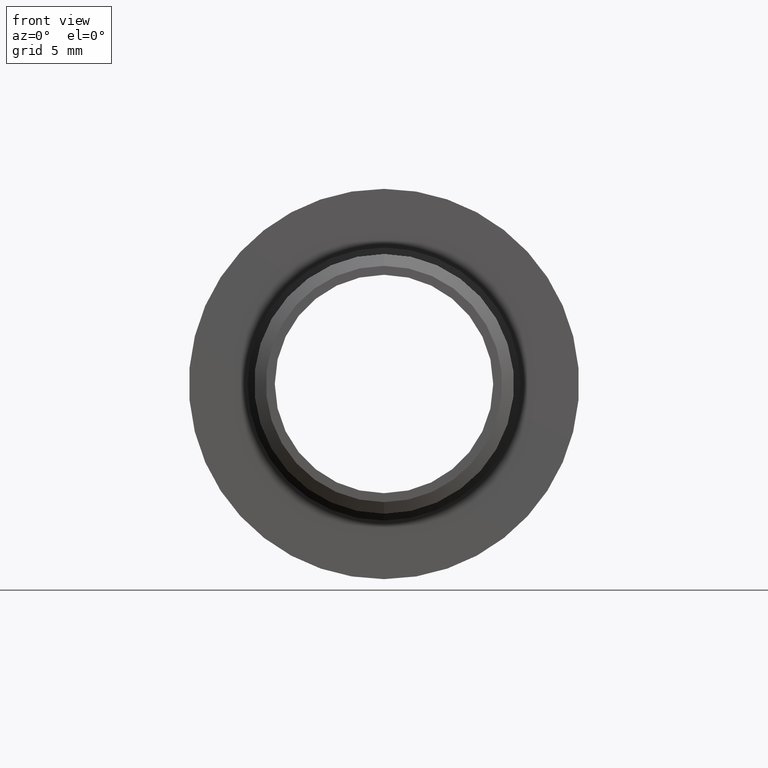
[diagram: clean part render]
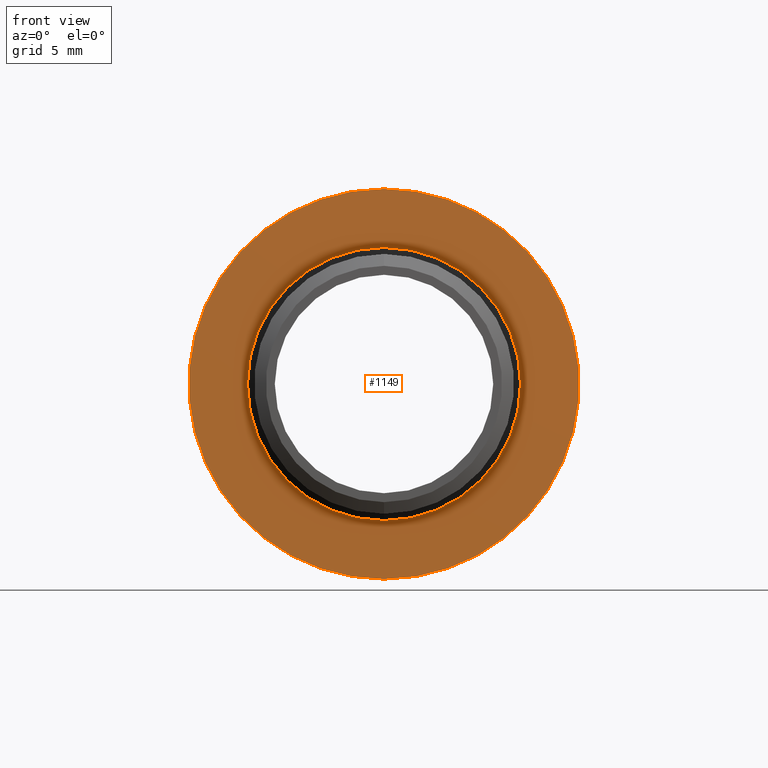
[diagram: same view with one face highlighted and labeled with its STEP entity id]
A machine part, front view. The second image highlights one B-rep face of the part: STEP entity #1149.
In plain terms, the highlighted planar face has unit normal (0, -1, -0).
Its self-contained STEP definition (entity closure, byte-faithful):
#3 = VERTEX_POINT ( 'NONE', #480 ) ;
#5 = VERTEX_POINT ( 'NONE', #475 ) ;
#7 = EDGE_CURVE ( 'NONE', #3, #5, #539, .T. ) ;
#475 = CARTESIAN_POINT ( 'NONE',  ( 0.0000000000000000000, 0.3399999999999998000, 0.3150000000000000000 ) ) ;
#480 = CARTESIAN_POINT ( 'NONE',  ( 3.857637417314162700E-017, 0.3399999999999998000, -0.3150000000000000000 ) ) ;
#535 = DIRECTION ( 'NONE',  ( 0.0000000000000000000, 0.0000000000000000000, -1.000000000000000000 ) ) ;
#536 = DIRECTION ( 'NONE',  ( -0.0000000000000000000, -1.000000000000000000, -0.0000000000000000000 ) ) ;
#537 = CARTESIAN_POINT ( 'NONE',  ( 0.0000000000000000000, 0.3399999999999998000, 0.0000000000000000000 ) ) ;
#538 = AXIS2_PLACEMENT_3D ( 'NONE', #537, #536, #535 ) ;
#539 = CIRCLE ( 'NONE', #538, 0.3150000000000000000 ) ;
#1088 = VERTEX_POINT ( 'NONE', #1604 ) ;
#1092 = EDGE_CURVE ( 'NONE', #1088, #1093, #1599, .T. ) ;
#1093 = VERTEX_POINT ( 'NONE', #1594 ) ;
#1108 = ORIENTED_EDGE ( 'NONE', *, *, #1233, .T. ) ;
#1136 = ORIENTED_EDGE ( 'NONE', *, *, #1092, .T. ) ;
#1143 = EDGE_LOOP ( 'NONE', ( #1136, #1108 ) ) ;
#1149 = ADVANCED_FACE ( 'NONE', ( #1687, #1686 ), #1685, .T. ) ;
#1216 = ORIENTED_EDGE ( 'NONE', *, *, #1229, .F. ) ;
#1217 = EDGE_LOOP ( 'NONE', ( #1216, #1224 ) ) ;
#1224 = ORIENTED_EDGE ( 'NONE', *, *, #7, .F. ) ;
#1229 = EDGE_CURVE ( 'NONE', #5, #3, #1843, .T. ) ;
#1233 = EDGE_CURVE ( 'NONE', #1093, #1088, #1838, .T. ) ;
#1594 = CARTESIAN_POINT ( 'NONE',  ( 5.514584536560531100E-017, 0.3399999999999999700, 0.4502999999999999800 ) ) ;
#1595 = DIRECTION ( 'NONE',  ( 0.0000000000000000000, 0.0000000000000000000, -1.000000000000000000 ) ) ;
#1596 = DIRECTION ( 'NONE',  ( -0.0000000000000000000, -1.000000000000000000, -0.0000000000000000000 ) ) ;
#1597 = CARTESIAN_POINT ( 'NONE',  ( 0.0000000000000000000, 0.3399999999999999700, 0.0000000000000000000 ) ) ;
#1598 = AXIS2_PLACEMENT_3D ( 'NONE', #1597, #1596, #1595 ) ;
#1599 = CIRCLE ( 'NONE', #1598, 0.4502999999999999800 ) ;
#1604 = CARTESIAN_POINT ( 'NONE',  ( 0.0000000000000000000, 0.3399999999999999700, -0.4502999999999999800 ) ) ;
#1680 = DIRECTION ( 'NONE',  ( 0.0000000000000000000, 0.0000000000000000000, -1.000000000000000000 ) ) ;
#1681 = DIRECTION ( 'NONE',  ( 0.0000000000000000000, -1.000000000000000000, -0.0000000000000000000 ) ) ;
#1682 = AXIS2_PLACEMENT_3D ( 'NONE', #1684, #1681, #1680 ) ;
#1684 = CARTESIAN_POINT ( 'NONE',  ( 0.3150000000000000000, 0.3399999999999999700, 0.0000000000000000000 ) ) ;
#1685 = PLANE ( 'NONE',  #1682 ) ;
#1686 = FACE_BOUND ( 'NONE', #1217, .T. ) ;
#1687 = FACE_OUTER_BOUND ( 'NONE', #1143, .T. ) ;
#1835 = DIRECTION ( 'NONE',  ( 0.0000000000000000000, 0.0000000000000000000, -1.000000000000000000 ) ) ;
#1836 = DIRECTION ( 'NONE',  ( -0.0000000000000000000, -1.000000000000000000, -0.0000000000000000000 ) ) ;
#1837 = AXIS2_PLACEMENT_3D ( 'NONE', #1844, #1836, #1835 ) ;
#1838 = CIRCLE ( 'NONE', #1837, 0.4502999999999999800 ) ;
#1839 = DIRECTION ( 'NONE',  ( 0.0000000000000000000, 0.0000000000000000000, -1.000000000000000000 ) ) ;
#1840 = DIRECTION ( 'NONE',  ( -0.0000000000000000000, -1.000000000000000000, -0.0000000000000000000 ) ) ;
#1841 = CARTESIAN_POINT ( 'NONE',  ( 0.0000000000000000000, 0.3399999999999998000, 0.0000000000000000000 ) ) ;
#1842 = AXIS2_PLACEMENT_3D ( 'NONE', #1841, #1840, #1839 ) ;
#1843 = CIRCLE ( 'NONE', #1842, 0.3150000000000000000 ) ;
#1844 = CARTESIAN_POINT ( 'NONE',  ( 0.0000000000000000000, 0.3399999999999999700, 0.0000000000000000000 ) ) ;